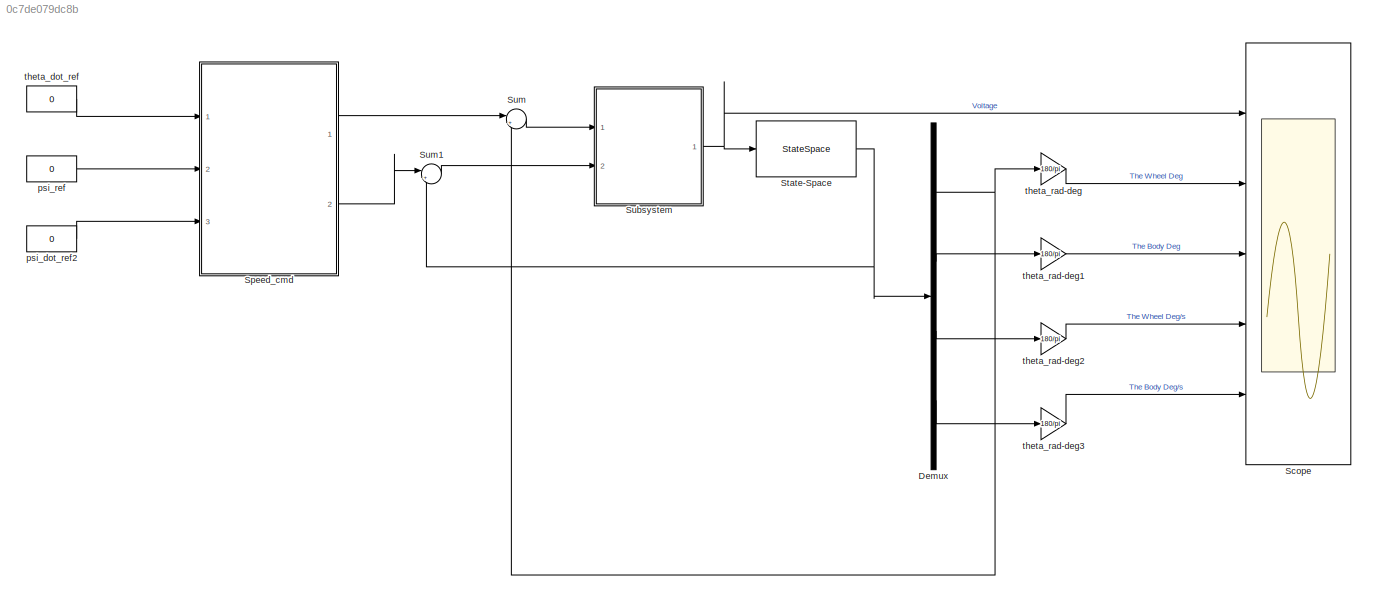
MODEL slx_0c7de079dc8b
KIND model
CONFIG AbsTol = auto
CONFIG EnableMultiTasking = off
CONFIG FixedStep = auto
CONFIG MaxStep = auto
CONFIG MinStep = auto
CONFIG RelTol = 1e-3
CONFIG SampleTimeConstraint = Unconstrained
CONFIG Solver = VariableStepAuto
CONFIG SolverName = VariableStepAuto
CONFIG StartTime = 0.0
CONFIG StopTime = 10.0
BLOCK [Demux] Demux
  DisplayOption = bar
  Ports = [1, 4]
BLOCK [Scope] Scope
  Floating = off
  NumInputPorts = 5
  Ports = [5]
  ScopeSpecificationString = Simulink.scopes.TimeScopeBlockCfg('CurrentConfiguration', extmgr.ConfigurationSet(extmgr.Configuration('Core','General UI',true),extmgr.Configuration('Core','Source UI',true),extmgr.Configuration('Sources','WiredSimulink',true,'DataLoggingSaveFormat','StructureWithTime','DataLoggingDecimation','1','DataLoggingDecimateData',true),extmgr.Configuration('Visuals','Time Domain',true,'TimeAxisLabels','A...<+4396ch>
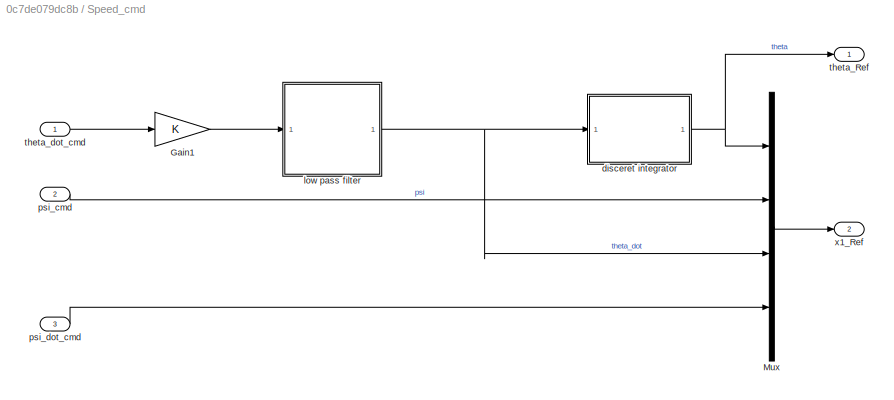
BLOCK [SubSystem] Speed_cmd
  Ports = [3, 2]
  RequestExecContextInheritance = off
BLOCK [Gain] Speed_cmd/Gain1
  SaturateOnIntegerOverflow = off
BLOCK [Mux] Speed_cmd/Mux
  DisplayOption = bar
  Ports = [4, 1]
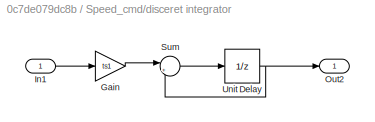
BLOCK [SubSystem] Speed_cmd/disceret integrator
  Ports = [1, 1]
  RequestExecContextInheritance = off
BLOCK [Gain] Speed_cmd/disceret integrator/Gain
  Gain = ts1
  OutDataTypeStr = Inherit: Inherit via internal rule
  ParamDataTypeStr = Inherit: Inherit via internal rule
  SaturateOnIntegerOverflow = off
BLOCK [Inport] Speed_cmd/disceret integrator/In1
  IconDisplay = Port number
BLOCK [Outport] Speed_cmd/disceret integrator/Out2
  IconDisplay = Port number
BLOCK [Sum] Speed_cmd/disceret integrator/Sum
  IconShape = round
  InputSameDT = off
  Inputs = |++
  Ports = [2, 1]
  SaturateOnIntegerOverflow = off
BLOCK [UnitDelay] Speed_cmd/disceret integrator/Unit Delay
  InputProcessing = Elements as channels (sample based)
  SampleTime = -1
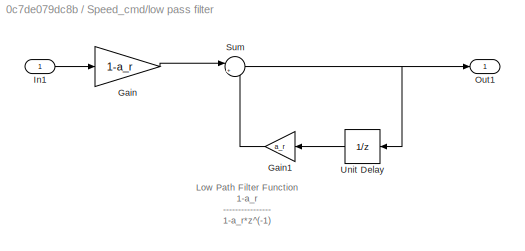
BLOCK [SubSystem] Speed_cmd/low pass filter
  Ports = [1, 1]
  RequestExecContextInheritance = off
BLOCK [Gain] Speed_cmd/low pass filter/Gain
  Gain = 1-a_r
  OutDataTypeStr = Inherit: Inherit via internal rule
  ParamDataTypeStr = Inherit: Inherit via internal rule
  SaturateOnIntegerOverflow = off
BLOCK [Gain] Speed_cmd/low pass filter/Gain1
  Gain = a_r
  OutDataTypeStr = Inherit: Inherit via internal rule
  ParamDataTypeStr = Inherit: Inherit via internal rule
  SaturateOnIntegerOverflow = off
BLOCK [Inport] Speed_cmd/low pass filter/In1
  IconDisplay = Port number
BLOCK [Outport] Speed_cmd/low pass filter/Out1
  IconDisplay = Port number
BLOCK [Sum] Speed_cmd/low pass filter/Sum
  IconShape = round
  InputSameDT = off
  Inputs = |++
  Ports = [2, 1]
  SaturateOnIntegerOverflow = off
BLOCK [UnitDelay] Speed_cmd/low pass filter/Unit Delay
  InputProcessing = Elements as channels (sample based)
  SampleTime = -1
BLOCK [Inport] Speed_cmd/psi_cmd
  IconDisplay = Port number
  Port = 2
BLOCK [Inport] Speed_cmd/psi_dot_cmd
  IconDisplay = Port number
  Port = 3
BLOCK [Outport] Speed_cmd/theta_Ref
  IconDisplay = Port number
BLOCK [Inport] Speed_cmd/theta_dot_cmd
  IconDisplay = Port number
BLOCK [Outport] Speed_cmd/x1_Ref
  IconDisplay = Port number
  Port = 2
BLOCK [StateSpace] State-Space
  A = A1
  B = B1
  C = C1
  D = D1
  InitialCondition = [0.1;5*pi/180;0;0]
  Ports = [1, 1]
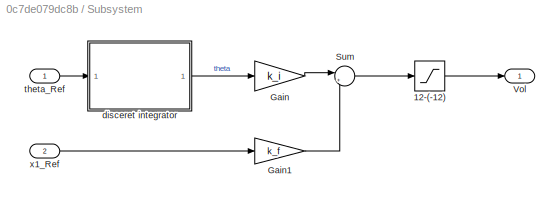
BLOCK [SubSystem] Subsystem
  Ports = [2, 1]
  RequestExecContextInheritance = off
BLOCK [Saturate] Subsystem/12-(-12)
  InputPortMap = u0
  LowerLimit = -12
  Ports = [1, 1]
  UpperLimit = 12
BLOCK [Gain] Subsystem/Gain
  Gain = k_i
  Multiplication = Matrix(K*u)
  OutDataTypeStr = Inherit: Inherit via internal rule
  ParamDataTypeStr = Inherit: Inherit via internal rule
  SaturateOnIntegerOverflow = off
BLOCK [Gain] Subsystem/Gain1
  Gain = k_f
  Multiplication = Matrix(K*u)
  OutDataTypeStr = Inherit: Inherit via internal rule
  ParamDataTypeStr = Inherit: Inherit via internal rule
  SaturateOnIntegerOverflow = off
BLOCK [Sum] Subsystem/Sum
  IconShape = round
  InputSameDT = off
  Inputs = |++
  Ports = [2, 1]
  SaturateOnIntegerOverflow = off
BLOCK [Outport] Subsystem/Vol
  IconDisplay = Port number
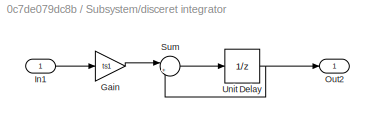
BLOCK [SubSystem] Subsystem/disceret integrator
  Ports = [1, 1]
  RequestExecContextInheritance = off
BLOCK [Gain] Subsystem/disceret integrator/Gain
  Gain = ts1
  OutDataTypeStr = Inherit: Inherit via internal rule
  ParamDataTypeStr = Inherit: Inherit via internal rule
  SaturateOnIntegerOverflow = off
BLOCK [Inport] Subsystem/disceret integrator/In1
  IconDisplay = Port number
BLOCK [Outport] Subsystem/disceret integrator/Out2
  IconDisplay = Port number
BLOCK [Sum] Subsystem/disceret integrator/Sum
  IconShape = round
  InputSameDT = off
  Inputs = |++
  Ports = [2, 1]
  SaturateOnIntegerOverflow = off
BLOCK [UnitDelay] Subsystem/disceret integrator/Unit Delay
  InputProcessing = Elements as channels (sample based)
  SampleTime = -1
BLOCK [Inport] Subsystem/theta_Ref
  IconDisplay = Port number
BLOCK [Inport] Subsystem/x1_Ref
  IconDisplay = Port number
  Port = 2
BLOCK [Sum] Sum
  IconShape = round
  InputSameDT = off
  Inputs = |+-
  OutDataTypeStr = Inherit: Inherit via internal rule
  Ports = [2, 1]
  SaturateOnIntegerOverflow = off
BLOCK [Sum] Sum1
  IconShape = round
  InputSameDT = off
  Inputs = |+-
  OutDataTypeStr = Inherit: Inherit via internal rule
  Ports = [2, 1]
  SaturateOnIntegerOverflow = off
BLOCK [Constant] psi_dot_ref2
  Value = 0
BLOCK [Constant] psi_ref
  Value = 0
BLOCK [Constant] theta_dot_ref
  Value = 0
BLOCK [Gain] theta_rad-deg
  Gain = 180/pi
BLOCK [Gain] theta_rad-deg1
  Gain = 180/pi
BLOCK [Gain] theta_rad-deg2
  Gain = 180/pi
BLOCK [Gain] theta_rad-deg3
  Gain = 180/pi
ANNOTATION Speed_cmd/low pass filter: Low Path Filter Function 1-a_r ---------------- 1-a_r*z^(-1)
NET Demux:1 -> Sum:2, theta_rad-deg:1
LINE Demux:2 -> theta_rad-deg1:1
LINE Demux:3 -> theta_rad-deg2:1
LINE Demux:4 -> theta_rad-deg3:1
LINE Speed_cmd/Gain1:1 -> Speed_cmd/low pass filter:1
LINE Speed_cmd/Mux:1 -> Speed_cmd/x1_Ref:1
LINE Speed_cmd/disceret integrator/Gain:1 -> Speed_cmd/disceret integrator/Sum:1
LINE Speed_cmd/disceret integrator/In1:1 -> Speed_cmd/disceret integrator/Gain:1
LINE Speed_cmd/disceret integrator/Sum:1 -> Speed_cmd/disceret integrator/Unit Delay:1
NET Speed_cmd/disceret integrator/Unit Delay:1 -> Speed_cmd/disceret integrator/Out2:1, Speed_cmd/disceret integrator/Sum:2
NET Speed_cmd/disceret integrator:1 -> Speed_cmd/Mux:1, Speed_cmd/theta_Ref:1
LINE Speed_cmd/low pass filter/Gain1:1 -> Speed_cmd/low pass filter/Sum:2
LINE Speed_cmd/low pass filter/Gain:1 -> Speed_cmd/low pass filter/Sum:1
LINE Speed_cmd/low pass filter/In1:1 -> Speed_cmd/low pass filter/Gain:1
NET Speed_cmd/low pass filter/Sum:1 -> Speed_cmd/low pass filter/Out1:1, Speed_cmd/low pass filter/Unit Delay:1
LINE Speed_cmd/low pass filter/Unit Delay:1 -> Speed_cmd/low pass filter/Gain1:1
NET Speed_cmd/low pass filter:1 -> Speed_cmd/Mux:3, Speed_cmd/disceret integrator:1
LINE Speed_cmd/psi_cmd:1 -> Speed_cmd/Mux:2
LINE Speed_cmd/psi_dot_cmd:1 -> Speed_cmd/Mux:4
LINE Speed_cmd/theta_dot_cmd:1 -> Speed_cmd/Gain1:1
LINE Speed_cmd:1 -> Sum:1
LINE Speed_cmd:2 -> Sum1:1
NET State-Space:1 -> Demux:1, Sum1:2
LINE Subsystem/12-(-12):1 -> Subsystem/Vol:1
LINE Subsystem/Gain1:1 -> Subsystem/Sum:2
LINE Subsystem/Gain:1 -> Subsystem/Sum:1
LINE Subsystem/Sum:1 -> Subsystem/12-(-12):1
LINE Subsystem/disceret integrator/Gain:1 -> Subsystem/disceret integrator/Sum:1
LINE Subsystem/disceret integrator/In1:1 -> Subsystem/disceret integrator/Gain:1
LINE Subsystem/disceret integrator/Sum:1 -> Subsystem/disceret integrator/Unit Delay:1
NET Subsystem/disceret integrator/Unit Delay:1 -> Subsystem/disceret integrator/Out2:1, Subsystem/disceret integrator/Sum:2
LINE Subsystem/disceret integrator:1 -> Subsystem/Gain:1
LINE Subsystem/theta_Ref:1 -> Subsystem/disceret integrator:1
LINE Subsystem/x1_Ref:1 -> Subsystem/Gain1:1
NET Subsystem:1 -> Scope:1, State-Space:1
LINE Sum1:1 -> Subsystem:2
LINE Sum:1 -> Subsystem:1
LINE psi_dot_ref2:1 -> Speed_cmd:3
LINE psi_ref:1 -> Speed_cmd:2
LINE theta_dot_ref:1 -> Speed_cmd:1
LINE theta_rad-deg1:1 -> Scope:3
LINE theta_rad-deg2:1 -> Scope:4
LINE theta_rad-deg3:1 -> Scope:5
LINE theta_rad-deg:1 -> Scope:2
note: NET lines group one-source signal fan-out (src -> all destinations, sorted); 1:1 wires keep LINE
